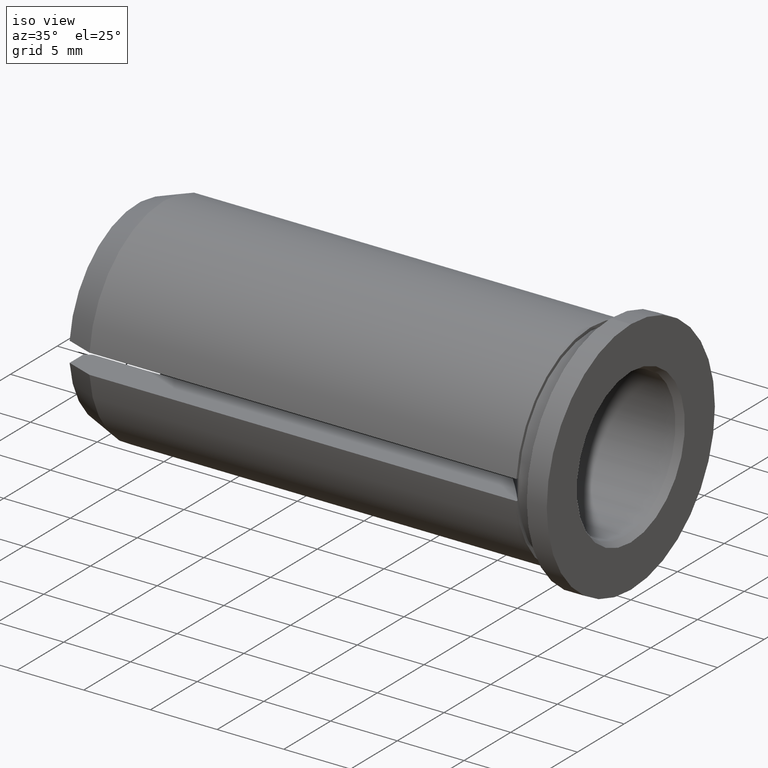
[diagram: clean part render]
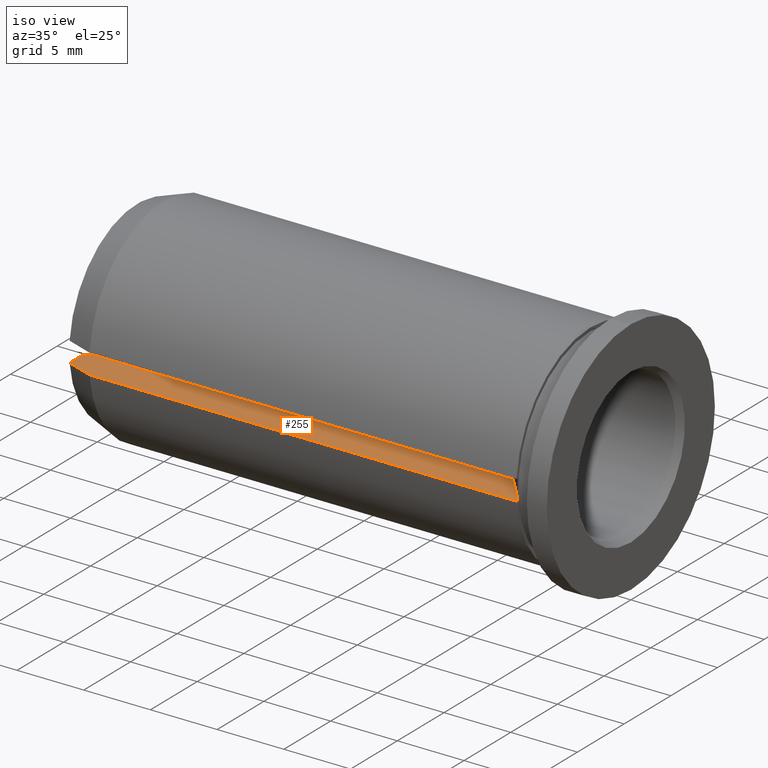
[diagram: same view with one face highlighted and labeled with its STEP entity id]
A machine part, iso view. The second image highlights one B-rep face of the part: STEP entity #255.
In plain terms, the highlighted planar face has unit normal (-0, 0, -1).
Its self-contained STEP definition (entity closure, byte-faithful):
#6 = CARTESIAN_POINT ( 'NONE',  ( -37.00000000000000000, -7.233280709968928700, -0.7500000000000000000 ) ) ;
#13 = B_SPLINE_CURVE_WITH_KNOTS ( 'NONE', 3,
 ( #204, #72, #299, #6 ),
 .UNSPECIFIED., .F., .F.,
 ( 4, 4 ),
 ( 0.009711911398750116400, 0.01184148182100318500 ),
 .UNSPECIFIED. ) ;
#22 = DIRECTION ( 'NONE',  ( -1.000000000000000000, 0.0000000000000000000, 0.0000000000000000000 ) ) ;
#24 = CARTESIAN_POINT ( 'NONE',  ( -36.50000000000000000, -5.448623679425841400, -0.7500000000000000000 ) ) ;
#25 = LINE ( 'NONE', #48, #281 ) ;
#27 = ORIENTED_EDGE ( 'NONE', *, *, #377, .F. ) ;
#45 = DIRECTION ( 'NONE',  ( -0.0000000000000000000, 0.0000000000000000000, -1.000000000000000000 ) ) ;
#46 = CARTESIAN_POINT ( 'NONE',  ( -36.50000000000000000, -5.448623679425841400, -0.7500000000000000000 ) ) ;
#48 = CARTESIAN_POINT ( 'NONE',  ( -38.58775536857143600, -5.448623679425841400, -0.7500000000000000000 ) ) ;
#51 = ORIENTED_EDGE ( 'NONE', *, *, #128, .F. ) ;
#72 = CARTESIAN_POINT ( 'NONE',  ( -35.66670156923833400, -7.721033178614087300, -0.7500000000000000000 ) ) ;
#78 = ORIENTED_EDGE ( 'NONE', *, *, #297, .T. ) ;
#79 = CARTESIAN_POINT ( 'NONE',  ( -37.00000000000000000, 7.272059531467589500, -0.7500000000000000000 ) ) ;
#81 = CARTESIAN_POINT ( 'NONE',  ( -3.000000000000002700, -7.964766161036996200, -0.7500000000000000000 ) ) ;
#102 = ORIENTED_EDGE ( 'NONE', *, *, #218, .F. ) ;
#106 = CARTESIAN_POINT ( 'NONE',  ( -37.00000000000000000, -5.739883257861286800, -0.7500000000000000000 ) ) ;
#112 = VECTOR ( 'NONE', #246, 1000.000000000000000 ) ;
#113 = CARTESIAN_POINT ( 'NONE',  ( -37.00000000000000000, -7.233280709968928700, -0.7500000000000000000 ) ) ;
#119 = LINE ( 'NONE', #280, #112 ) ;
#120 = ORIENTED_EDGE ( 'NONE', *, *, #424, .F. ) ;
#121 = DIRECTION ( 'NONE',  ( 1.000000000000000000, 0.0000000000000000000, 0.0000000000000000000 ) ) ;
#123 = CARTESIAN_POINT ( 'NONE',  ( -34.99999999999999300, -7.964766161036994400, -0.7500000000000000000 ) ) ;
#128 = EDGE_CURVE ( 'NONE', #373, #137, #13, .T. ) ;
#135 = EDGE_CURVE ( 'NONE', #201, #394, #375, .T. ) ;
#137 = VERTEX_POINT ( 'NONE', #113 ) ;
#147 = AXIS2_PLACEMENT_3D ( 'NONE', #207, #45, #249 ) ;
#159 = VERTEX_POINT ( 'NONE', #381 ) ;
#165 = CARTESIAN_POINT ( 'NONE',  ( -3.000000000000000900, 7.750000000000000000, -0.7500000000000000000 ) ) ;
#176 = FACE_OUTER_BOUND ( 'NONE', #347, .T. ) ;
#179 = PLANE ( 'NONE',  #147 ) ;
#183 = CARTESIAN_POINT ( 'NONE',  ( -37.00000000000000000, -5.739883257861286800, -0.7500000000000000000 ) ) ;
#185 = LINE ( 'NONE', #165, #217 ) ;
#198 = LINE ( 'NONE', #79, #346 ) ;
#200 = CIRCLE ( 'NONE', #389, 31.50000000000000700 ) ;
#201 = VERTEX_POINT ( 'NONE', #183 ) ;
#204 = CARTESIAN_POINT ( 'NONE',  ( -34.99999999999999300, -7.964766161036994400, -0.7500000000000000000 ) ) ;
#207 = CARTESIAN_POINT ( 'NONE',  ( -27.99999999999999600, -27.00000000000000000, -0.7500000000000000000 ) ) ;
#217 = VECTOR ( 'NONE', #391, 1000.000000000000000 ) ;
#218 = EDGE_CURVE ( 'NONE', #137, #201, #198, .T. ) ;
#236 = DIRECTION ( 'NONE',  ( 0.0000000000000000000, 1.000000000000000000, 0.0000000000000000000 ) ) ;
#246 = DIRECTION ( 'NONE',  ( -1.000000000000000000, -0.0000000000000000000, -0.0000000000000000000 ) ) ;
#249 = DIRECTION ( 'NONE',  ( -1.000000000000000000, 0.0000000000000000000, 0.0000000000000000000 ) ) ;
#255 = ADVANCED_FACE ( 'NONE', ( #176 ), #179, .F. ) ;
#280 = CARTESIAN_POINT ( 'NONE',  ( -38.58775536857143600, -7.964766161036994400, -0.7500000000000000000 ) ) ;
#281 = VECTOR ( 'NONE', #121, 1000.000000000000000 ) ;
#288 = ORIENTED_EDGE ( 'NONE', *, *, #135, .F. ) ;
#292 = VERTEX_POINT ( 'NONE', #387 ) ;
#297 = EDGE_CURVE ( 'NONE', #292, #159, #200, .T. ) ;
#299 = CARTESIAN_POINT ( 'NONE',  ( -36.33337186691171900, -7.477214302540265800, -0.7500000000000000000 ) ) ;
#325 = EDGE_CURVE ( 'NONE', #394, #159, #25, .T. ) ;
#333 = VERTEX_POINT ( 'NONE', #81 ) ;
#339 = CARTESIAN_POINT ( 'NONE',  ( -36.83331444535005500, -5.642829254337529600, -0.7500000000000000000 ) ) ;
#346 = VECTOR ( 'NONE', #236, 1000.000000000000000 ) ;
#347 = EDGE_LOOP ( 'NONE', ( #288, #102, #51, #27, #120, #78, #380 ) ) ;
#349 = DIRECTION ( 'NONE',  ( 0.0000000000000000000, 0.0000000000000000000, 1.000000000000000000 ) ) ;
#372 = CARTESIAN_POINT ( 'NONE',  ( -36.66664677364383400, -5.545744458738215400, -0.7500000000000000000 ) ) ;
#373 = VERTEX_POINT ( 'NONE', #123 ) ;
#375 = B_SPLINE_CURVE_WITH_KNOTS ( 'NONE', 3,
 ( #106, #339, #372, #46 ),
 .UNSPECIFIED., .F., .F.,
 ( 4, 4 ),
 ( 0.006318320823388439600, 0.006896967145803828600 ),
 .UNSPECIFIED. ) ;
#377 = EDGE_CURVE ( 'NONE', #333, #373, #119, .T. ) ;
#380 = ORIENTED_EDGE ( 'NONE', *, *, #325, .F. ) ;
#381 = CARTESIAN_POINT ( 'NONE',  ( -5.026359045876161800, -5.448623679425841400, -0.7500000000000000000 ) ) ;
#382 = CARTESIAN_POINT ( 'NONE',  ( -27.99999999999999600, -27.00000000000000000, -0.7500000000000000000 ) ) ;
#387 = CARTESIAN_POINT ( 'NONE',  ( -3.000000000000002700, -7.836232103263177400, -0.7500000000000000000 ) ) ;
#389 = AXIS2_PLACEMENT_3D ( 'NONE', #382, #349, #22 ) ;
#391 = DIRECTION ( 'NONE',  ( 0.0000000000000000000, -1.000000000000000000, 0.0000000000000000000 ) ) ;
#394 = VERTEX_POINT ( 'NONE', #24 ) ;
#424 = EDGE_CURVE ( 'NONE', #292, #333, #185, .T. ) ;